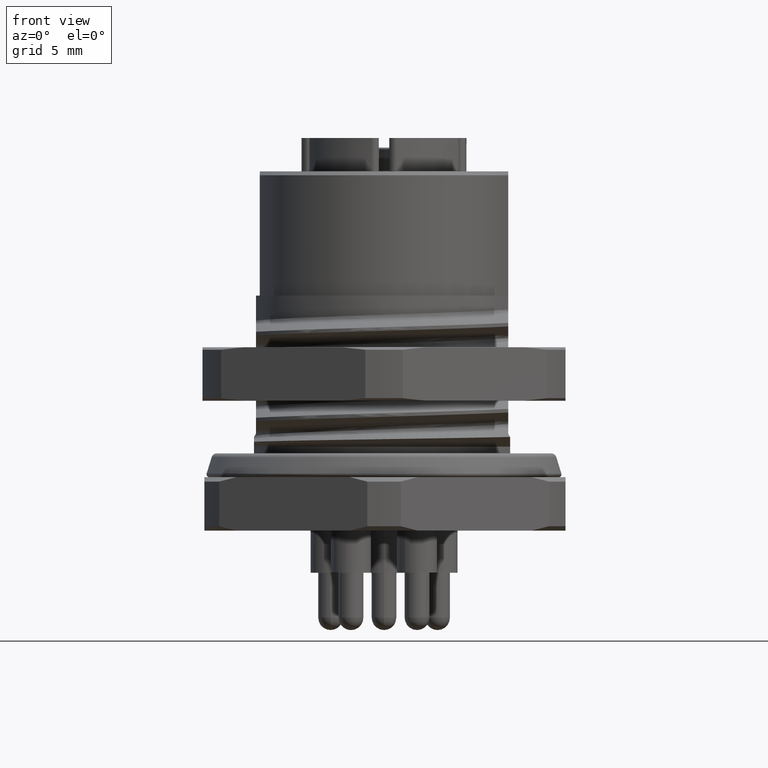
[diagram: clean part render]
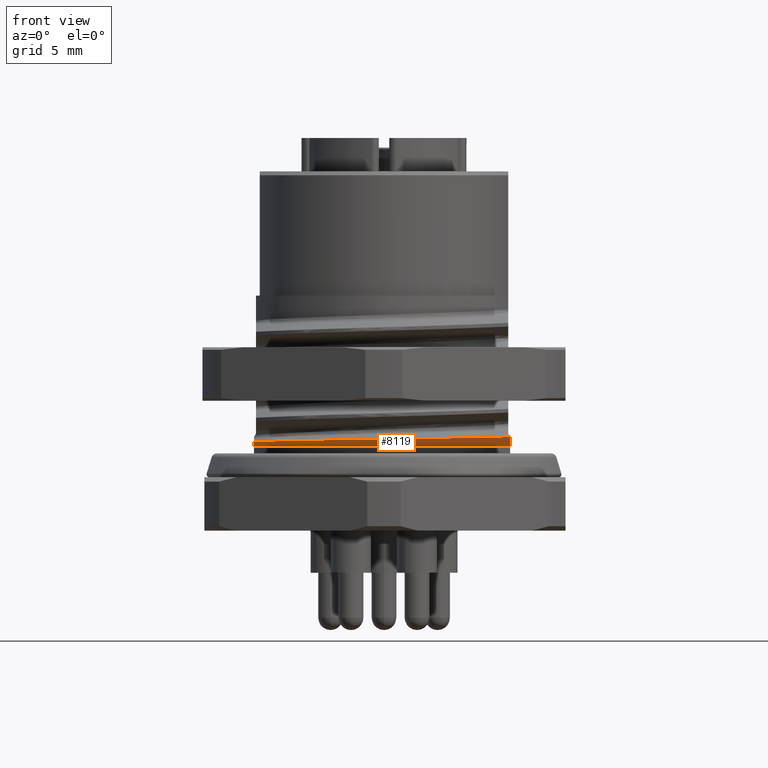
[diagram: same view with one face highlighted and labeled with its STEP entity id]
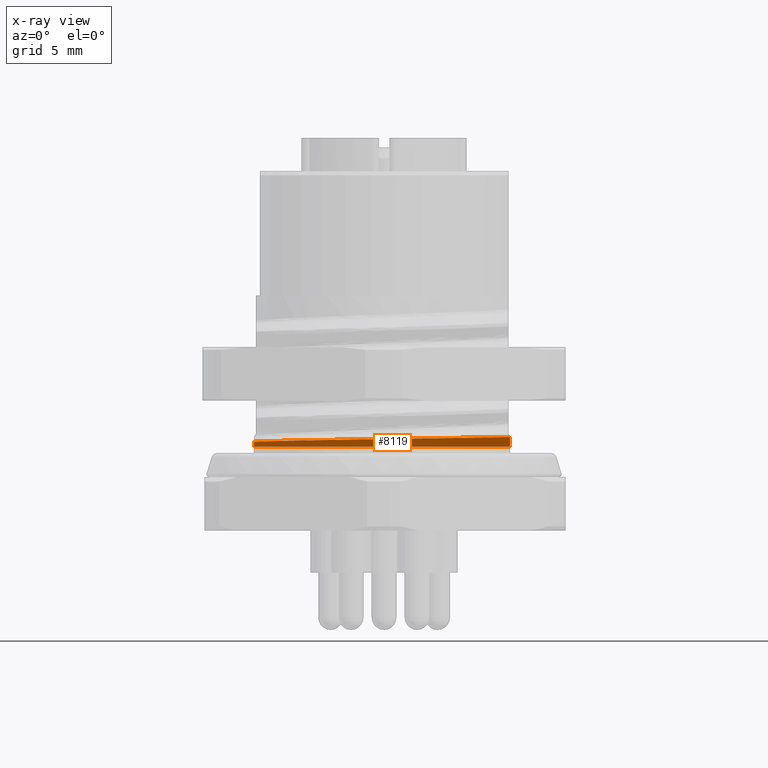
[diagram: x-ray of the same camera — body ghosted, the highlighted face saturated]
A machine part, front view. The second image highlights one B-rep face of the part: STEP entity #8119.
The next image is the same camera in x-ray: the body ghosted, the highlighted face saturated — about 0% of this face is hidden behind the body in this view.
In plain terms, the highlighted conical surface has half-angle 60 deg.
Its self-contained STEP definition (entity closure, byte-faithful):
#586=CARTESIAN_POINT('',(6.6E0,-4.424852508004E0,2.1E0));
#587=CARTESIAN_POINT('',(6.599662396237E0,-4.427174847348E0,2.100584746870E0));
#588=CARTESIAN_POINT('',(6.598986719345E0,-4.431819716378E0,2.101755053577E0));
#589=CARTESIAN_POINT('',(6.597971796516E0,-4.438787591826E0,2.103512951483E0));
#590=CARTESIAN_POINT('',(6.597294243559E0,-4.443433222693E0,2.104686507628E0));
#591=CARTESIAN_POINT('',(6.596955232748E0,-4.445756133415E0,2.105273691578E0));
#593=CARTESIAN_POINT('',(6.6E0,-4.424852508004E0,2.1E0));
#594=CARTESIAN_POINT('',(6.6E0,-4.207697315597E0,2.030183440908E0));
#595=CARTESIAN_POINT('',(6.6E0,-3.780318555653E0,1.899931128270E0));
#596=CARTESIAN_POINT('',(6.6E0,-3.165503006882E0,1.734522542402E0));
#597=CARTESIAN_POINT('',(6.6E0,-2.761863399254E0,1.641659866021E0));
#598=CARTESIAN_POINT('',(6.6E0,-2.562498780488E0,1.6E0));
#600=CARTESIAN_POINT('',(0.E0,0.E0,1.6E0));
#601=DIRECTION('',(0.E0,0.E0,-1.E0));
#602=DIRECTION('',(9.322033898305E-1,-3.619348560011E-1,0.E0));
#603=AXIS2_PLACEMENT_3D('',#600,#601,#602);
#5025=CARTESIAN_POINT('',(6.596955232748E0,-4.445756133415E0,2.105273691578E0));
#5032=CARTESIAN_POINT('',(-6.8E0,-3.209619279546E0,1.853698440763E0));
#5033=CARTESIAN_POINT('',(-6.698138342787E0,-3.441749407532E0,
1.857721014826E0));
#5034=CARTESIAN_POINT('',(-6.470715173775E0,-3.896132086465E0,
1.865762577598E0));
#5035=CARTESIAN_POINT('',(-6.061838303842E0,-4.540926455110E0,
1.877812553614E0));
#5036=CARTESIAN_POINT('',(-5.589043573914E0,-5.142503099350E0,
1.889854997739E0));
#5037=CARTESIAN_POINT('',(-5.056654680881E0,-5.69477763E0,1.901895293114E0));
#5038=CARTESIAN_POINT('',(-4.470398662792E0,-6.191410924143E0,
1.913921992906E0));
#5039=CARTESIAN_POINT('',(-3.835951966497E0,-6.627383592201E0,
1.925938827570E0));
#5040=CARTESIAN_POINT('',(-3.159203534889E0,-6.998262653132E0,
1.937952767058E0));
#5041=CARTESIAN_POINT('',(-2.447191900959E0,-7.299821019073E0,
1.949957883506E0));
#5042=CARTESIAN_POINT('',(-1.707273729247E0,-7.528731433629E0,
1.961950461825E0));
#5043=CARTESIAN_POINT('',(-9.465294644333E-1,-7.682583202511E0,
1.973935938175E0));
#5044=CARTESIAN_POINT('',(-1.722459052867E-1,-7.759534130401E0,
1.985919367427E0));
#5045=CARTESIAN_POINT('',(6.070392516640E-1,-7.758470715439E0,
1.997889040583E0));
#5046=CARTESIAN_POINT('',(1.383780230263E0,-7.679240939824E0,2.009849646784E0));
#5047=CARTESIAN_POINT('',(2.150465226391E0,-7.522307102859E0,2.021806179248E0));
#5048=CARTESIAN_POINT('',(2.899156168656E0,-7.288962108307E0,2.033755935214E0));
#5049=CARTESIAN_POINT('',(3.621908274991E0,-6.981460077125E0,2.045693005491E0));
#5050=CARTESIAN_POINT('',(4.311730173263E0,-6.602569972524E0,2.057622678221E0));
#5051=CARTESIAN_POINT('',(4.961914885957E0,-6.155560696611E0,2.069551289733E0));
#5052=CARTESIAN_POINT('',(5.565134963118E0,-5.645141235207E0,2.081466387374E0));
#5053=CARTESIAN_POINT('',(6.115489837298E0,-5.076106302815E0,2.093372286003E0));
#5054=CARTESIAN_POINT('',(6.443525872537E0,-4.661132959479E0,2.101307162557E0));
#5055=CARTESIAN_POINT('',(6.596955232748E0,-4.445756133415E0,2.105273691578E0));
#5075=CARTESIAN_POINT('',(-6.8E0,-3.209619279546E0,1.853698440763E0));
#5076=CARTESIAN_POINT('',(-6.8E0,-3.070375180103E0,1.819383327891E0));
#5077=CARTESIAN_POINT('',(-6.8E0,-2.793030354009E0,1.754686986134E0));
#5078=CARTESIAN_POINT('',(-6.8E0,-2.380146112091E0,1.669878878511E0));
#5079=CARTESIAN_POINT('',(-6.8E0,-2.107273066773E0,1.621843780362E0));
#5080=CARTESIAN_POINT('',(-6.8E0,-1.971395444856E0,1.6E0));
#6783=CARTESIAN_POINT('',(-6.8E0,-1.971395444856E0,1.6E0));
#6785=VERTEX_POINT('',#6783);
#6791=VERTEX_POINT('',#5075);
#6797=CARTESIAN_POINT('',(6.6E0,-2.562498780488E0,1.6E0));
#6799=VERTEX_POINT('',#6797);
#6990=VERTEX_POINT('',#5025);
#6999=CARTESIAN_POINT('',(6.6E0,-4.424852508004E0,2.1E0));
#7000=VERTEX_POINT('',#6999);
#8103=CARTESIAN_POINT('',(0.E0,0.E0,1.852636845789E0));
#8104=DIRECTION('',(0.E0,0.E0,1.E0));
#8105=DIRECTION('',(-8.660254037844E-1,5.E-1,0.E0));
#8106=AXIS2_PLACEMENT_3D('',#8103,#8104,#8105);
#8107=CONICAL_SURFACE('',#8106,7.517579852771E0,6.E1);
#8109=ORIENTED_EDGE('',*,*,#8108,.F.);
#8111=ORIENTED_EDGE('',*,*,#8110,.T.);
#8112=ORIENTED_EDGE('',*,*,#8093,.T.);
#8114=ORIENTED_EDGE('',*,*,#8113,.F.);
#8116=ORIENTED_EDGE('',*,*,#8115,.T.);
#8117=EDGE_LOOP('',(#8109,#8111,#8112,#8114,#8116));
#8118=FACE_OUTER_BOUND('',#8117,.F.);
#592=B_SPLINE_CURVE_WITH_KNOTS('',3,(#586,#587,#588,#589,#590,#591),
.UNSPECIFIED.,.F.,.F.,(4,1,1,4),(0.E0,3.333333333333E-1,6.666666666667E-1,1.E0),
.UNSPECIFIED.);
#599=B_SPLINE_CURVE_WITH_KNOTS('',3,(#593,#594,#595,#596,#597,#598),
.UNSPECIFIED.,.F.,.F.,(4,1,1,4),(0.E0,3.333333333333E-1,6.666666666667E-1,1.E0),
.UNSPECIFIED.);
#604=CIRCLE('',#603,7.08E0);
#5056=B_SPLINE_CURVE_WITH_KNOTS('',3,(#5032,#5033,#5034,#5035,#5036,#5037,#5038,
#5039,#5040,#5041,#5042,#5043,#5044,#5045,#5046,#5047,#5048,#5049,#5050,#5051,
#5052,#5053,#5054,#5055),.UNSPECIFIED.,.F.,.F.,(4,1,1,1,1,1,1,1,1,1,1,1,1,1,1,1,
1,1,1,1,1,4),(0.E0,4.761904761905E-2,9.523809523810E-2,1.428571428571E-1,
1.904761904762E-1,2.380952380952E-1,2.857142857143E-1,3.333333333333E-1,
3.809523809524E-1,4.285714285714E-1,4.761904761905E-1,5.238095238095E-1,
5.714285714286E-1,6.190476190476E-1,6.666666666667E-1,7.142857142857E-1,
7.619047619048E-1,8.095238095238E-1,8.571428571429E-1,9.047619047619E-1,
9.523809523810E-1,1.E0),.UNSPECIFIED.);
#5081=B_SPLINE_CURVE_WITH_KNOTS('',3,(#5075,#5076,#5077,#5078,#5079,#5080),
.UNSPECIFIED.,.F.,.F.,(4,1,1,4),(0.E0,3.333333333333E-1,6.666666666667E-1,1.E0),
.UNSPECIFIED.);
#8093=EDGE_CURVE('',#6799,#6785,#604,.T.);
#8108=EDGE_CURVE('',#7000,#6990,#592,.T.);
#8110=EDGE_CURVE('',#7000,#6799,#599,.T.);
#8113=EDGE_CURVE('',#6791,#6785,#5081,.T.);
#8115=EDGE_CURVE('',#6791,#6990,#5056,.T.);
#8119=ADVANCED_FACE('',(#8118),#8107,.T.);